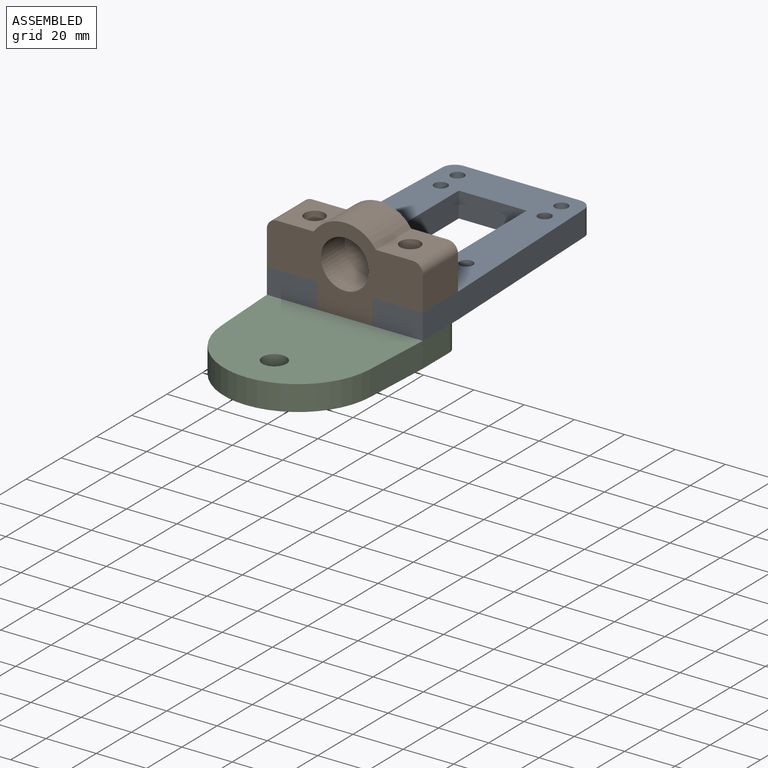
[diagram: assembled view]
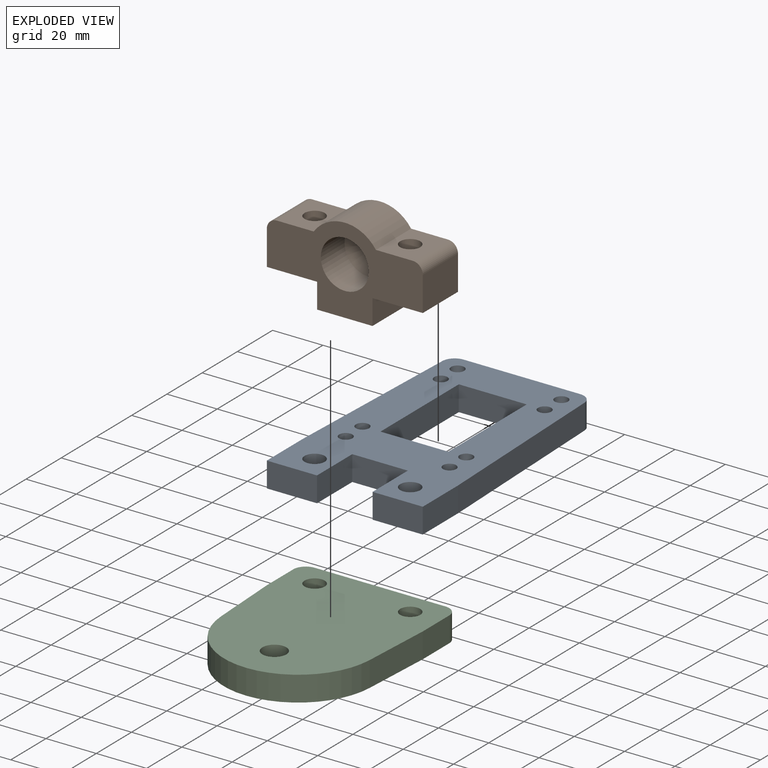
[diagram: exploded view]
GUIDED TOUR — MATED ASSEMBLY (Onshape document 9533a2f0c1294c159d92d038, AutoMate assembly 9533a2f0c1294c159d92d038_ef773fe8a3c0dddaf7b63695_05d38f6d90d732dfd6eae7c2_default)

This assembly has 3 components, labeled P0..P2 below (a component is one placed occurrence of a part; the same part can appear more than once), held together by 2 mates. A mate is a constraint between two components; its type names the relative motion it leaves free:
  FASTENED — locks the two components together rigidly (no relative motion).
Axis/direction vectors are unit vectors and 'through' points are millimeter coordinates, both in the assembly's world frame.

MATES
  1. FASTENED "Fastened 1": P1 <-> P0, direction (0.000, 0.000, -1.000) through (-21.32, 5.84, -33.60) mm
  2. FASTENED "Fastened 2": P2 <-> P0, direction (0.000, 0.000, 1.000) through (16.68, 5.84, -43.60) mm

ASSEMBLY ORDER
  1. P1 — the base component [order verified]
  2. P0 [order verified]
  3. P2 [order verified]
Order-tag legend:
  [order verified] — this step's position reverses a verified removal order: the component was checked to insert without passing through the ones already placed.

Of the 3 components, 1 carries the full construction recipe — the FeatureScript program that regenerates the part's solid from scratch; the rest are supplied as boundary geometry only.
Each toured component is shown spotlighted twice — in the assembled view, then in the exploded view, where a leader line traces a displaced component back to its assembled socket (saturated green if recipe-attached, orange if geometry-only; every other component desaturated gray) — followed by its recipe or geometry summary and the mates that hold it.
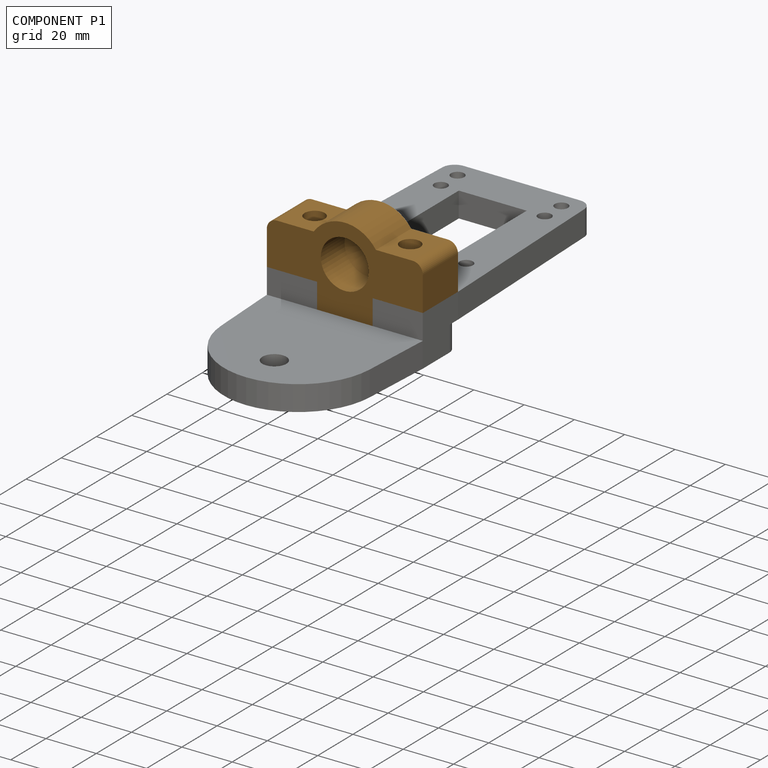
[diagram: component P1 — assembled]
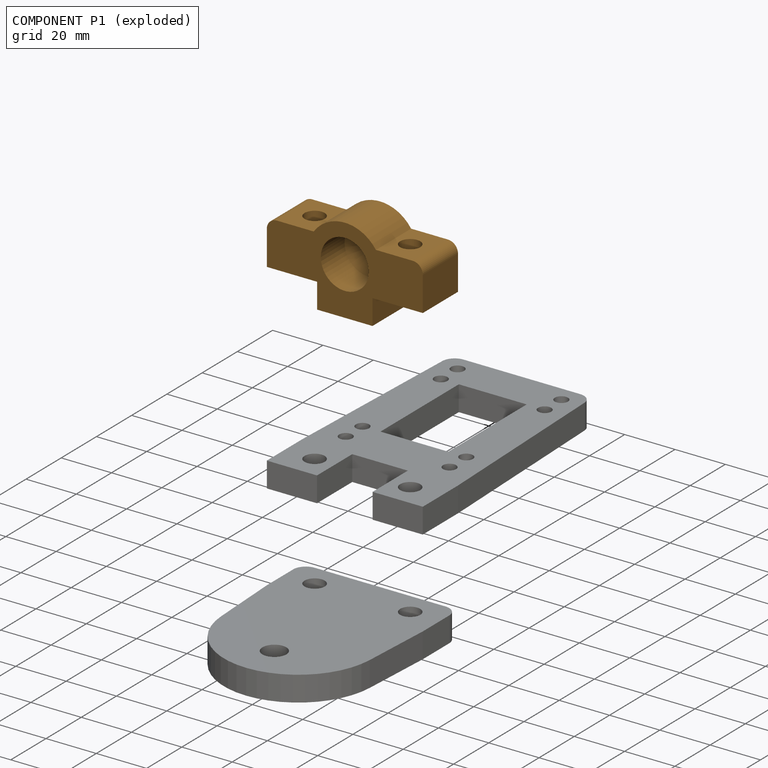
[diagram: component P1 — exploded]
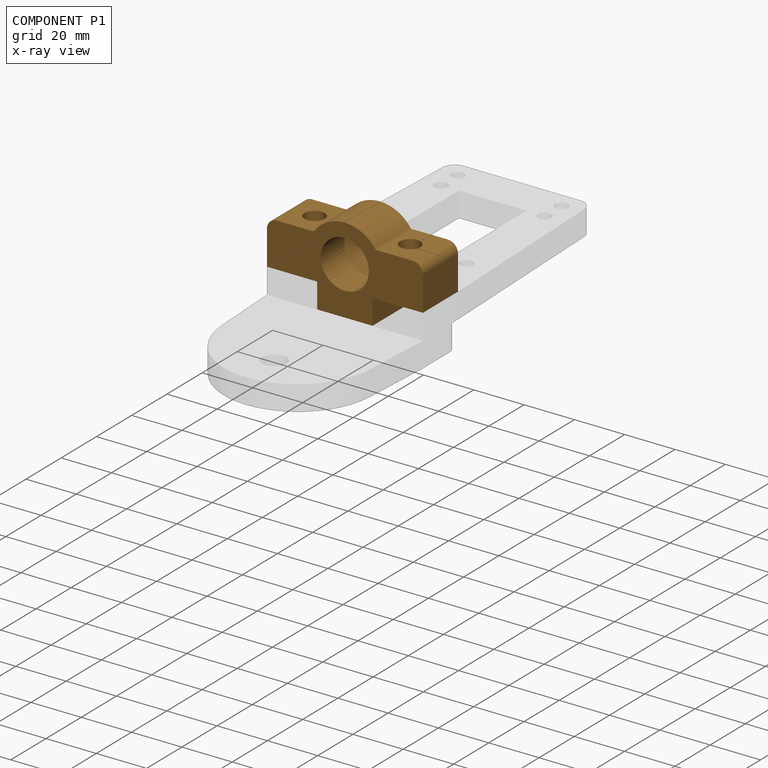
[diagram: component P1 — x-ray view]
COMPONENT P1 — geometry summary (no construction recipe available for this part):
  bounding box: 62.0 x 34.2 x 20.0 mm
  B-rep topology: 1 solid, 19 faces, 102 edges
  volume: 22216 mm^3 (52% of its bounding box)
  symmetry: mirror-symmetric across its x mid-plane
Held by: FASTENED mate "Fastened 1" to P0.
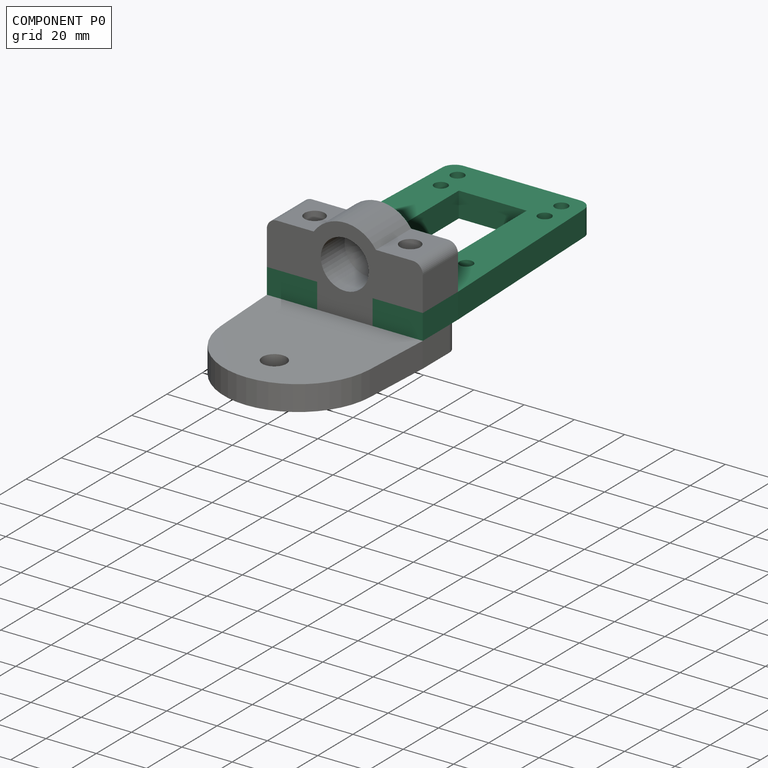
[diagram: component P0 — assembled]
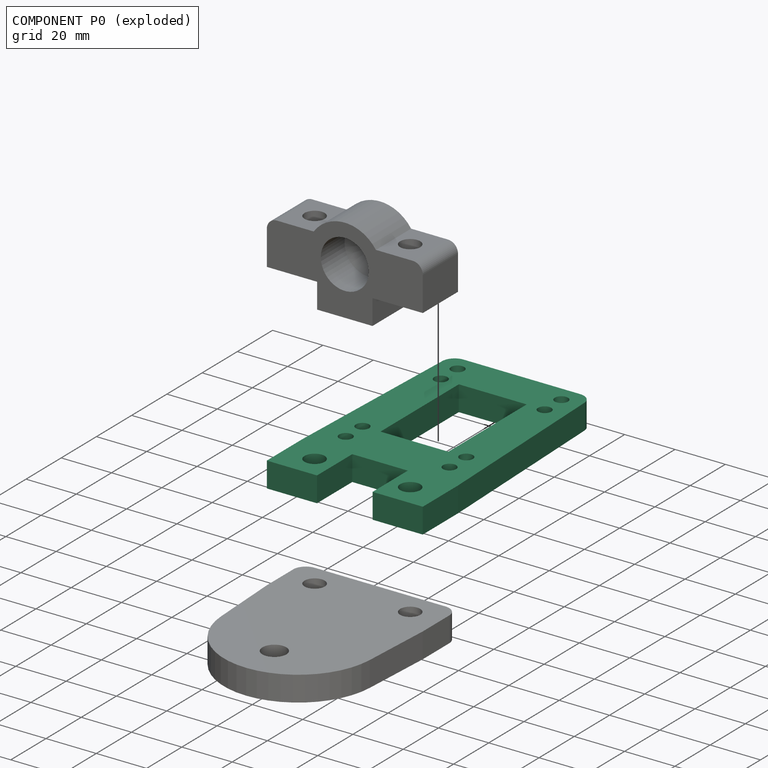
[diagram: component P0 — exploded]
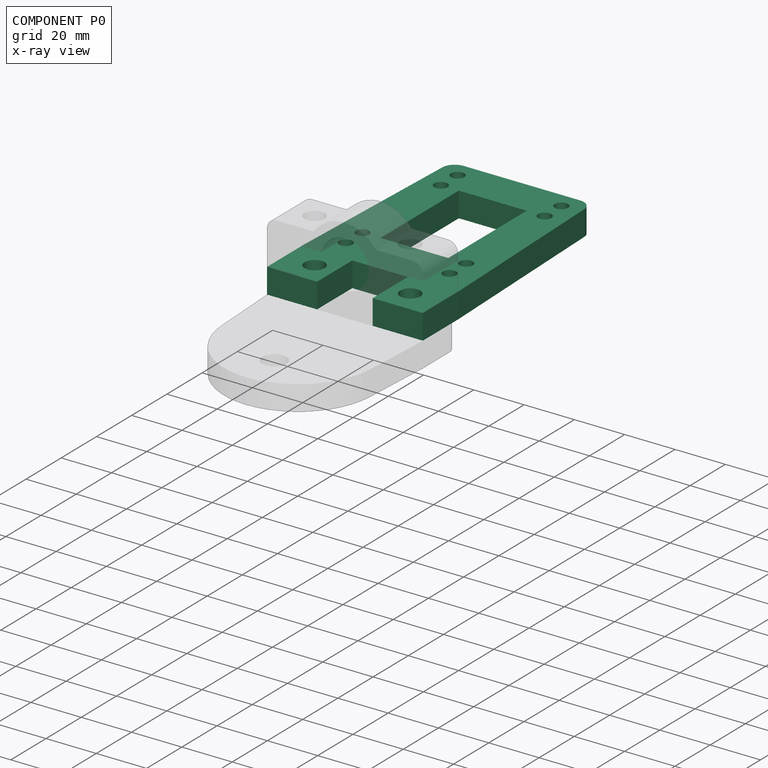
[diagram: component P0 — x-ray view]
COMPONENT P0 — recipe-attached (CADFS 00423573, mesh-verified: the recipe's output STEP matches this component's geometry to below the mesh-comparison resolution (tessellation chordal tolerance ~0.178 mm)).
Held by: FASTENED mate "Fastened 1" to P1; FASTENED mate "Fastened 2" to P2.
Construction recipe (FeatureScript — the CAD program that rebuilds this solid; sketch coordinates are in the units given by the * unit suffixes, e.g. mm):

FeatureScript 1511;
import(path : "onshape/std/geometry.fs", version : "1511.0");
import(path : "onshape/std/common.fs", version : "1511.0");
const mm = millimeter;
const VERTEX = EntityType.VERTEX;
const EDGE = EntityType.EDGE;
const FACE = EntityType.FACE;
const BODY = EntityType.BODY;
function v(x, y){return vector(x, y);}
function OD(order){return orderDisambiguation(order);}
function OSD(set){return originalSetDisambiguation(set);}
function TD(topology){return topologyDisambiguation(topology);}
function TDD(query){return trueDependencyDisambiguation(query);}
function sQuery(a, b, c) {return sketchEntityQuery(a, b, c);}

annotation { "Feature Type Name" : "Feature", "Feature Type Description" : "" }
export const myFeature = defineFeature(function(context is Context, id is Id, definition is map)
    precondition{}
    {
        {
            var Q0;
            Q0=qCreatedBy(makeId("Top.planeOp"),FACE);
            var sketch = newSketch(context, id + "F0", { "sketchPlane" : qUnion([Q0])});
            skLineSegment(sketch, "E0.bottom", {"start": v(28, -50.25) * mm, "end": v(-28, -50.25) * mm});
            skLineSegment(sketch, "E0.top", {"start": v(28, 50.25) * mm, "end": v(-28, 50.25) * mm});
            skLineSegment(sketch, "E0.left", {"start": v(28, -50.25) * mm, "end": v(28, 50.25) * mm});
            skLineSegment(sketch, "E0.right", {"start": v(-28, -50.25) * mm, "end": v(-28, 50.25) * mm});
            skPoint(sketch, "E0.middle", {"position": v(0, 0) * mm});
            skPoint(sketch, "E1", {"position": v(-19, -40.25) * mm});
            skPoint(sketch, "E2", {"position": v(19, -40.25) * mm});
            skLineSegment(sketch, "E3", {"start": v(0, 50.25) * mm, "end": v(0, -50.25) * mm});
            skPoint(sketch, "E4", {"position": v(20.64, -20.25) * mm});
            skPoint(sketch, "E5", {"position": v(-20.64, -20.25) * mm});
            skPoint(sketch, "E6", {"position": v(-20.64, 33.75) * mm});
            skPoint(sketch, "E7", {"position": v(20.64, 33.75) * mm});
            skPoint(sketch, "E8", {"position": v(0, 33.75) * mm});
            skLineSegment(sketch, "E9.bottom", {"start": v(11.05, -50.25) * mm, "end": v(-11.05, -50.25) * mm});
            skLineSegment(sketch, "E9.top", {"start": v(11.05, -30.25) * mm, "end": v(-11.05, -30.25) * mm});
            skLineSegment(sketch, "E9.left", {"start": v(11.05, -50.25) * mm, "end": v(11.05, -30.25) * mm});
            skLineSegment(sketch, "E9.right", {"start": v(-11.05, -50.25) * mm, "end": v(-11.05, -30.25) * mm});
            skPoint(sketch, "E9.middle", {"position": v(0, -40.25) * mm});
            skPoint(sketch, "E10", {"position": v(20.64, 43.25) * mm});
            skPoint(sketch, "E11", {"position": v(-20.64, 43.25) * mm});
            skPoint(sketch, "E12", {"position": v(-20.64, -10.75) * mm});
            skPoint(sketch, "E13", {"position": v(20.64, -10.75) * mm});
            skPoint(sketch, "E14", {"position": v(0, -10.75) * mm});
            skPoint(sketch, "E15", {"position": v(0, 11.5) * mm});
            skLineSegment(sketch, "E16", {"start": v(28, -50.25) * mm, "end": v(31, -50.25) * mm});
            skLineSegment(sketch, "E17", {"start": v(31, -50.25) * mm, "end": v(31, -30.25) * mm});
            skLineSegment(sketch, "E18", {"start": v(31, -30.25) * mm, "end": v(28, 50.25) * mm});
            skLineSegment(sketch, "E19", {"start": v(-28, -50.25) * mm, "end": v(-31, -50.25) * mm});
            skLineSegment(sketch, "E20", {"start": v(-31, -50.25) * mm, "end": v(-31, -30.25) * mm});
            skLineSegment(sketch, "E21", {"start": v(-31, -30.25) * mm, "end": v(-28, 50.25) * mm});
            skLineSegment(sketch, "E22.bottom", {"start": v(13.5, -10.75) * mm, "end": v(-13.5, -10.75) * mm});
            skLineSegment(sketch, "E22.top", {"start": v(13.5, 33.75) * mm, "end": v(-13.5, 33.75) * mm});
            skLineSegment(sketch, "E22.left", {"start": v(13.5, -10.75) * mm, "end": v(13.5, 33.75) * mm});
            skLineSegment(sketch, "E22.right", {"start": v(-13.5, -10.75) * mm, "end": v(-13.5, 33.75) * mm});
            skSolve(sketch);
        }
        {
            var Q0;
            {var subQ0=sQuery(id+"F0.wireOp",EDGE,"E0.right");Q0=makeQuery(id+"F0.imprint","IMPRINT",FACE,{"disambiguationData":[TD([[makeQuery(id+"F0.imprint","IMPRINT",EDGE,{"derivedFrom":subQ0}),-1.0]])]});}
            var Q1;
            {var subQ5=sQuery(id+"F0.wireOp",EDGE,"E0.left");Q1=makeQuery(id+"F0.imprint","IMPRINT",FACE,{"disambiguationData":[TD([[makeQuery(id+"F0.imprint","IMPRINT",EDGE,{"derivedFrom":subQ5}),1.0]])]});}
            var Q2;
            Q2=makeQuery(id+"F0.imprint","IMPRINT",FACE,{"disambiguationData":[TD([[makeQuery(id+"F0.imprint","IMPRINT",EDGE,{"derivedFrom":sQuery(id+"F0.wireOp",EDGE,"E0.right")}),1.0]])]});
            var Q3;
            Q3=makeQuery(id+"F0.imprint","IMPRINT",FACE,{"disambiguationData":[TD([[makeQuery(id+"F0.imprint","IMPRINT",EDGE,{"derivedFrom":sQuery(id+"F0.wireOp",EDGE,"E0.left")}),-1.0]])]});
            extrude(context, id + "F1", {"entities" : qUnion([Q0, Q1, Q2, Q3]), "depth" : 10 * mm});
        }
        {
            var Q0;
            Q0=sQuery(id+"F0.wireOp",VERTEX,"E4");
            var Q1;
            Q1=sQuery(id+"F0.wireOp",VERTEX,"E5");
            var Q2;
            Q2=sQuery(id+"F0.wireOp",VERTEX,"E6");
            var Q3;
            Q3=sQuery(id+"F0.wireOp",VERTEX,"E7");
            var Q4;
            Q4=sQuery(id+"F0.wireOp",VERTEX,"E11");
            var Q5;
            Q5=sQuery(id+"F0.wireOp",VERTEX,"E10");
            var Q6;
            Q6=sQuery(id+"F0.wireOp",VERTEX,"E13");
            var Q7;
            Q7=sQuery(id+"F0.wireOp",VERTEX,"E12");
            var Q8;
            Q8=makeQuery(id+"F1.opExtrude","SWEPT_BODY",BODY,{"disambiguationData":[OSD([sQuery(id+"F0.wireOp",EDGE,"E0.bottom"),sQuery(id+"F0.wireOp",EDGE,"E0.top"),sQuery(id+"F0.wireOp",EDGE,"E0.left"),sQuery(id+"F0.wireOp",EDGE,"E0.right"),sQuery(id+"F0.wireOp",EDGE,"L21EXdMg-1EtD-Z7vm-donr-5LUVcZekd0gJ.bottom"),sQuery(id+"F0.wireOp",EDGE,"L21EXdMg-1EtD-Z7vm-donr-5LUVcZekd0gJ.top"),sQuery(id+"F0.wireOp",EDGE,"L21EXdMg-1EtD-Z7vm-donr-5LUVcZekd0gJ.left"),sQuery(id+"F0.wireOp",EDGE,"L21EXdMg-1EtD-Z7vm-donr-5LUVcZekd0gJ.right")])]});
            hole(context, id + "F2", {"style" : HoleStyle.SIMPLE, "endStyle" : HoleEndStyle.THROUGH, "oppositeDirection" : true, "standardTappedOrClearance" : lookupTablePath({ "standard" : "ISO", "fit" : "Close", "size" : "M5", "type" : "Clearance" }), "standardBlindInLast" : lookupTablePath({ "fit" : "Close", "standard" : "ISO", "size" : "M5", "type" : "Clearance" }), "holeDiameter" : 5.25 * mm, "isTappedThrough" : true, "tappedDepth" : 12 * mm, "tapClearance" : 3, "locations" : qUnion([Q0, Q1, Q2, Q3, Q4, Q5, Q6, Q7]), "scope" : qUnion([Q8])});
        }
        {
            var Q0;
            Q0=sQuery(id+"F0.wireOp",VERTEX,"E1");
            var Q1;
            Q1=sQuery(id+"F0.wireOp",VERTEX,"E2");
            var Q2;
            Q2=makeQuery(id+"F1.opExtrude","SWEPT_BODY",BODY,{"disambiguationData":[OSD([sQuery(id+"F0.wireOp",EDGE,"E0.bottom"),sQuery(id+"F0.wireOp",EDGE,"E0.top"),sQuery(id+"F0.wireOp",EDGE,"E0.left"),sQuery(id+"F0.wireOp",EDGE,"E0.right"),sQuery(id+"F0.wireOp",EDGE,"L21EXdMg-1EtD-Z7vm-donr-5LUVcZekd0gJ.bottom"),sQuery(id+"F0.wireOp",EDGE,"L21EXdMg-1EtD-Z7vm-donr-5LUVcZekd0gJ.top"),sQuery(id+"F0.wireOp",EDGE,"L21EXdMg-1EtD-Z7vm-donr-5LUVcZekd0gJ.left"),sQuery(id+"F0.wireOp",EDGE,"L21EXdMg-1EtD-Z7vm-donr-5LUVcZekd0gJ.right")])]});
            hole(context, id + "F3", {"style" : HoleStyle.SIMPLE, "endStyle" : HoleEndStyle.THROUGH, "oppositeDirection" : true, "standardTappedOrClearance" : lookupTablePath({ "standard" : "ISO", "size" : "8", "type" : "Drilled" }), "standardBlindInLast" : lookupTablePath({ "standard" : "ISO", "size" : "8", "type" : "Drilled" }), "holeDiameter" : 8 * mm, "isTappedThrough" : true, "tappedDepth" : 12 * mm, "tapClearance" : 3, "locations" : qUnion([Q0, Q1]), "scope" : qUnion([Q2])});
        }
        {
            var Q0;
            Q0=makeQuery(id+"F1.opExtrude","SWEPT_EDGE",EDGE,{"disambiguationData":[OSD([sQuery(id+"F0.wireOp",EDGE,"E0.top"),sQuery(id+"F0.wireOp",EDGE,"E0.left")])]});
            var Q1;
            Q1=makeQuery(id+"F1.opExtrude","SWEPT_EDGE",EDGE,{"disambiguationData":[OSD([sQuery(id+"F0.wireOp",EDGE,"E0.top"),sQuery(id+"F0.wireOp",EDGE,"E0.right")])]});
            fillet(context, id + "F4", {"entities" : qUnion([Q0, Q1]), "radius" : 5 * mm, "tangentPropagation" : true, "allowEdgeOverflow" : false});
        }
    });
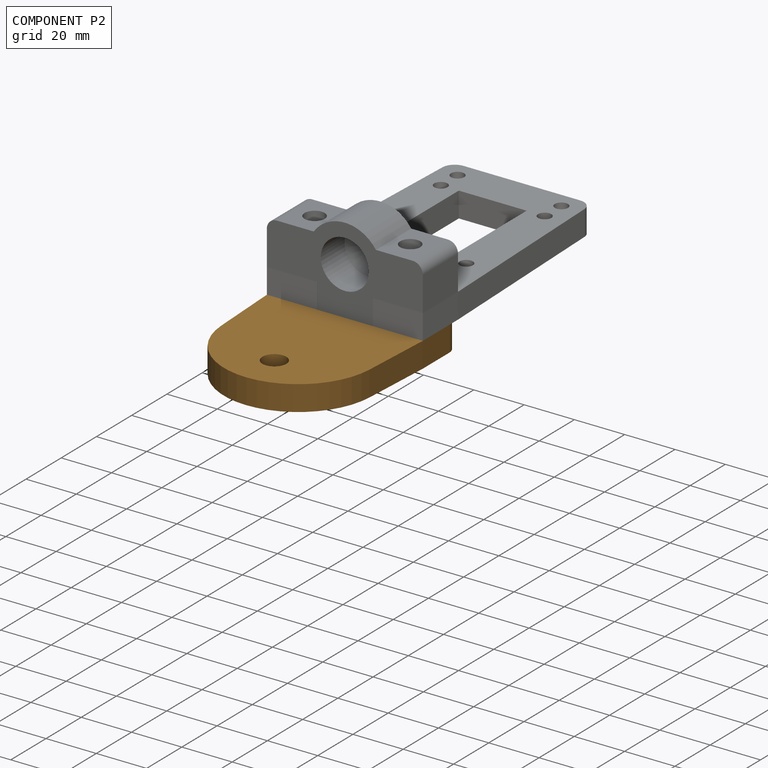
[diagram: component P2 — assembled]
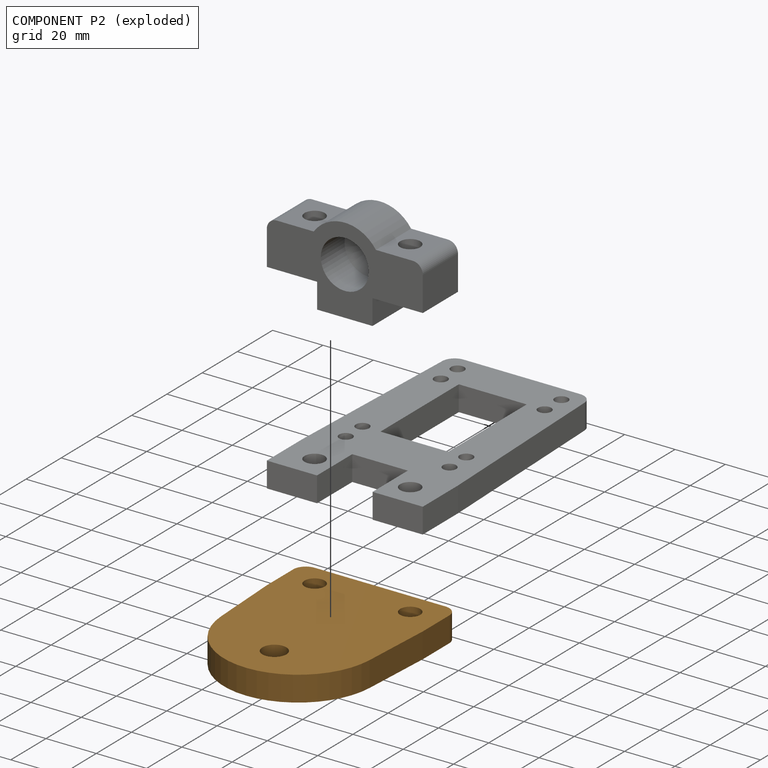
[diagram: component P2 — exploded]
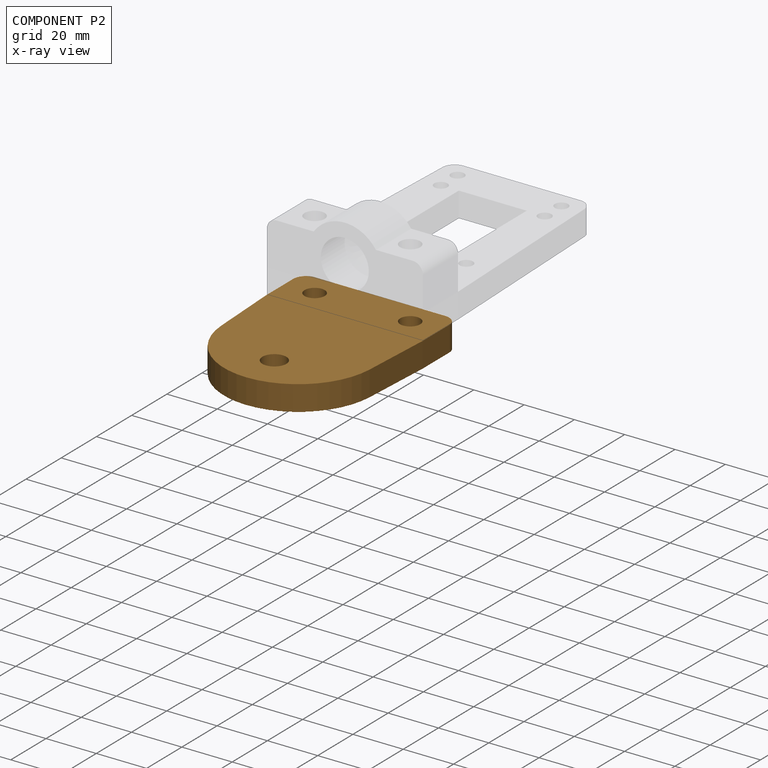
[diagram: component P2 — x-ray view]
COMPONENT P2 — geometry summary (no construction recipe available for this part):
  bounding box: 76.0 x 62.0 x 10.0 mm
  B-rep topology: 1 solid, 14 faces, 72 edges
  volume: 40304 mm^3 (86% of its bounding box)
  symmetry: 2-fold rotationally symmetric about the y axis; mirror-symmetric across its x mid-plane, z mid-plane
Held by: FASTENED mate "Fastened 2" to P0.
PROVENANCE & LICENSES
Assembly (occurrences, transforms, mates, per-part STEP geometry): AutoMate dataset, Zenodo record 7776208, CC0.
Construction recipes: CADFS (HuggingFace VladPyatov/CADFS, CC-BY-4.0, layered over the ABC dataset), FeatureScript reconstruction programs keyed by ABC model id.
Join: ABC meta listings map ABC model id -> Onshape documentId; within a shared document, parts are matched by geometric signature (bounding-box dims + volume at 0.1% relative tolerance, exact B-rep face/solid counts).
Verification: 1 of this assembly's 3 components carries a recipe attachment, and every attachment is mesh-verified: the CADFS STEP and the AutoMate member STEP were compared as meshes in their shared local frame (symmetric sampled-point-to-mesh distance); worst across the 1 attachment: below the mesh-comparison resolution (tessellation chordal tolerance ~0.178 mm) on a 119 mm part.
Renders: orthographic iso camera (az 35 / el 25); the floor grid conveys scale (grid pitch printed in each image; no ruler). In the exploded view each component is displaced by its stored offset vector: the offsets alone carry the explosion direction (mate normal/axis signs are not orientation cues and do not encode it), and separation distances are assigned per mate-chain, not proportionally to assembly-order depth.
